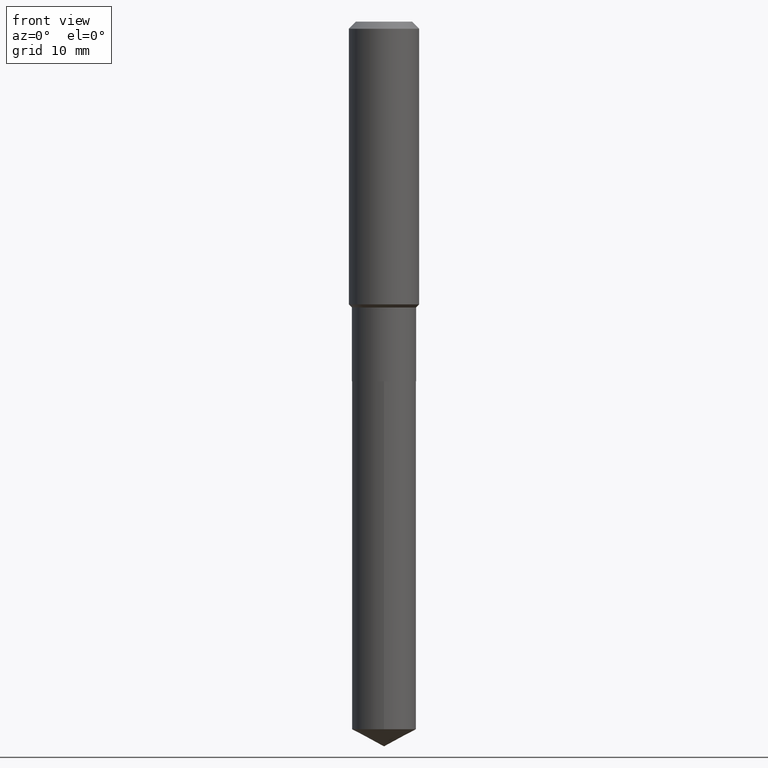
[diagram: clean part render]
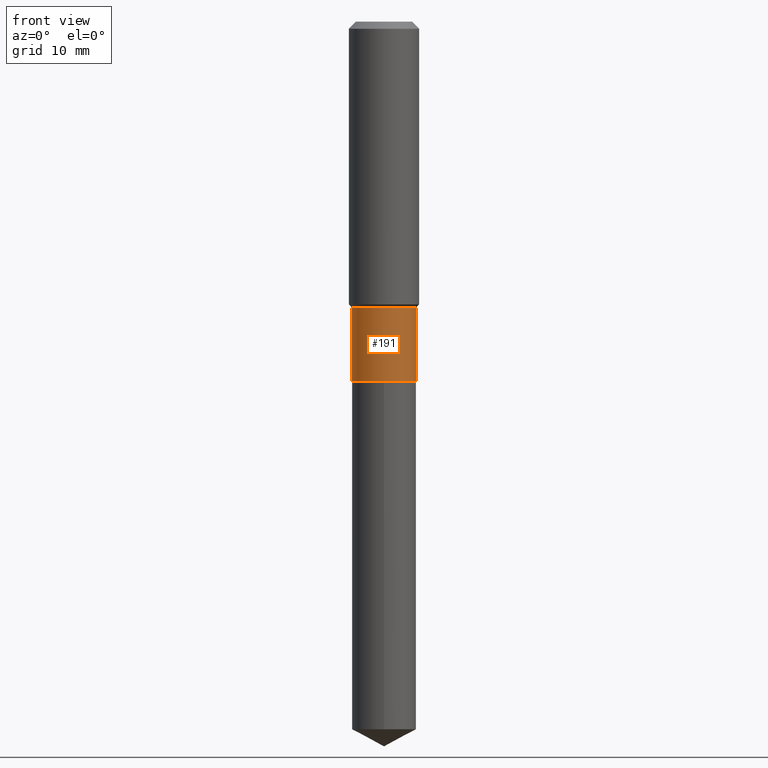
[diagram: same view with one face highlighted and labeled with its STEP entity id]
A machine part, front view. The second image highlights one B-rep face of the part: STEP entity #191.
In plain terms, the highlighted cylindrical surface (edge-blend (fillet) strip) has radius 4.5644 mm, axis along (-0, 0, 1).
Its self-contained STEP definition (entity closure, byte-faithful):
#41 = LINE ( 'NONE', #127, #354 ) ;
#50 = ORIENTED_EDGE ( 'NONE', *, *, #325, .F. ) ;
#51 = EDGE_CURVE ( 'NONE', #144, #346, #173, .T. ) ;
#54 = CARTESIAN_POINT ( 'NONE',  ( 3.910549167970651288E-29, -5.583227808944072017E-15, -1.599099999999999522 ) ) ;
#69 = CYLINDRICAL_SURFACE ( 'NONE', #201, 0.1796999999999999986 ) ;
#71 = FACE_OUTER_BOUND ( 'NONE', #317, .T. ) ;
#74 = AXIS2_PLACEMENT_3D ( 'NONE', #54, #393, #142 ) ;
#87 = AXIS2_PLACEMENT_3D ( 'NONE', #316, #207, #210 ) ;
#114 = ORIENTED_EDGE ( 'NONE', *, *, #261, .F. ) ;
#127 = CARTESIAN_POINT ( 'NONE',  ( -0.1796999999999999986, 1.276845296160900024E-15, -8.839326357188065585E-30 ) ) ;
#142 = DIRECTION ( 'NONE',  ( 1.000000000000000000, -6.982962677686269077E-15, 0.000000000000000000 ) ) ;
#144 = VERTEX_POINT ( 'NONE', #221 ) ;
#155 = DIRECTION ( 'NONE',  ( 1.000000000000000000, -6.982962677686265922E-15, 4.876176775795935232E-29 ) ) ;
#161 = ORIENTED_EDGE ( 'NONE', *, *, #415, .T. ) ;
#173 = LINE ( 'NONE', #249, #209 ) ;
#191 = ADVANCED_FACE ( 'NONE', ( #71 ), #69, .T. ) ;
#201 = AXIS2_PLACEMENT_3D ( 'NONE', #372, #294, #155 ) ;
#207 = DIRECTION ( 'NONE',  ( -2.445468806185136597E-29, 3.491481338843145583E-15, 1.000000000000000000 ) ) ;
#209 = VECTOR ( 'NONE', #361, 39.37007874015748143 ) ;
#210 = DIRECTION ( 'NONE',  ( 1.000000000000000000, -6.982962677686267499E-15, 0.000000000000000000 ) ) ;
#221 = CARTESIAN_POINT ( 'NONE',  ( 0.1796999999999999986, -8.279349698798745469E-15, -2.011899999999999800 ) ) ;
#225 = CIRCLE ( 'NONE', #87, 0.1796999999999999986 ) ;
#239 = CARTESIAN_POINT ( 'NONE',  ( -0.1796999999999999986, -5.027024261120398051E-15, -2.011899999999999800 ) ) ;
#249 = CARTESIAN_POINT ( 'NONE',  ( 0.1796999999999999986, -1.254838393180221928E-15, 8.762489666105295644E-30 ) ) ;
#261 = EDGE_CURVE ( 'NONE', #322, #383, #41, .T. ) ;
#281 = CARTESIAN_POINT ( 'NONE',  ( 0.1796999999999999709, -6.838066202124294536E-15, -1.599099999999999522 ) ) ;
#294 = DIRECTION ( 'NONE',  ( -2.445468806185136597E-29, 3.491481338843145583E-15, 1.000000000000000000 ) ) ;
#316 = CARTESIAN_POINT ( 'NONE',  ( 4.920038691163875479E-29, -7.024511305618523739E-15, -2.011899999999999800 ) ) ;
#317 = EDGE_LOOP ( 'NONE', ( #114, #161, #320, #50 ) ) ;
#320 = ORIENTED_EDGE ( 'NONE', *, *, #51, .T. ) ;
#322 = VERTEX_POINT ( 'NONE', #239 ) ;
#325 = EDGE_CURVE ( 'NONE', #383, #346, #472, .T. ) ;
#346 = VERTEX_POINT ( 'NONE', #281 ) ;
#354 = VECTOR ( 'NONE', #381, 39.37007874015748143 ) ;
#358 = CARTESIAN_POINT ( 'NONE',  ( -0.1796999999999999709, -5.027024261120398051E-15, -1.599099999999999522 ) ) ;
#361 = DIRECTION ( 'NONE',  ( -2.445468806185136877E-29, 3.491481338843145188E-15, 1.000000000000000000 ) ) ;
#372 = CARTESIAN_POINT ( 'NONE',  ( 0.000000000000000000, 0.000000000000000000, 0.000000000000000000 ) ) ;
#381 = DIRECTION ( 'NONE',  ( -2.445468806185136877E-29, 3.491481338843145188E-15, 1.000000000000000000 ) ) ;
#383 = VERTEX_POINT ( 'NONE', #358 ) ;
#393 = DIRECTION ( 'NONE',  ( -2.445468806185136597E-29, 3.491481338843145583E-15, 1.000000000000000000 ) ) ;
#415 = EDGE_CURVE ( 'NONE', #322, #144, #225, .T. ) ;
#472 = CIRCLE ( 'NONE', #74, 0.1796999999999999709 ) ;